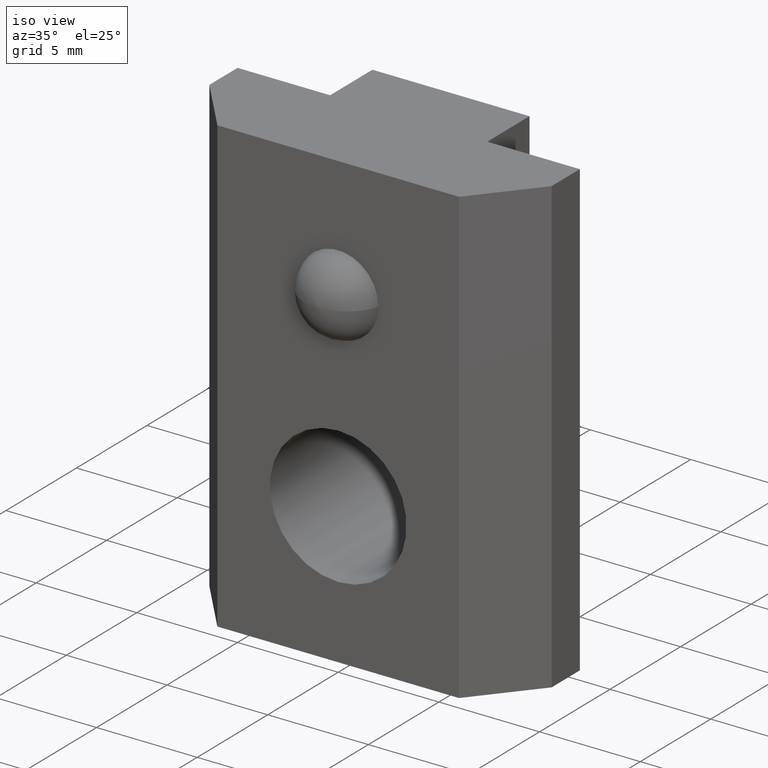
[diagram: clean part render]
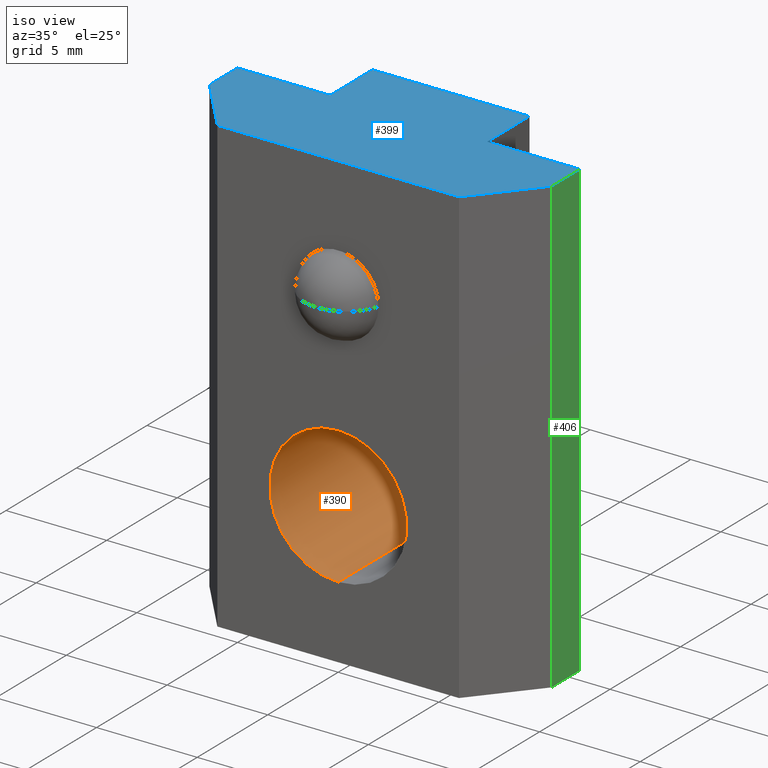
[diagram: same view with three faces highlighted in distinct colors, each labeled with its STEP entity id]
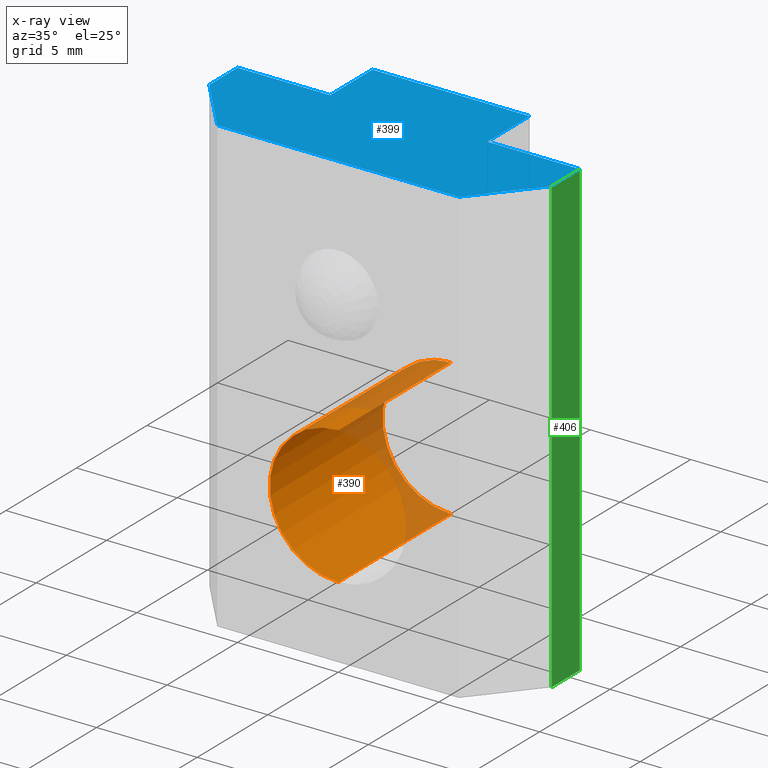
[diagram: x-ray of the same camera — body ghosted, the three highlighted faces saturated]
A machine part, iso view with three faces highlighted in distinct colors.
The next image is the same camera in x-ray (body ghosted, the three faces saturated) — at least one of them is partly hidden behind the body in this view.
Their STEP definitions:

[orange] entity #390 — the highlighted cylindrical surface (partial cylindrical patch) has radius 3.4 mm, axis along (-0, 1, -0).
#1 = CARTESIAN_POINT ( 'NONE',  ( -5.204170427930421300E-015, 7.999999999999998200, 7.000000000000000000 ) ) ;
#12 = DIRECTION ( 'NONE',  ( 0.0000000000000000000, 0.0000000000000000000, 1.000000000000000000 ) ) ;
#17 = DIRECTION ( 'NONE',  ( -0.0000000000000000000, 1.000000000000000000, -0.0000000000000000000 ) ) ;
#25 = CARTESIAN_POINT ( 'NONE',  ( -5.204170427930421300E-015, 7.999999999999998200, 10.40000000000000000 ) ) ;
#34 = CARTESIAN_POINT ( 'NONE',  ( -5.204170427930421300E-015, 7.999999999999998200, 7.000000000000000000 ) ) ;
#43 = DIRECTION ( 'NONE',  ( -0.0000000000000000000, 1.000000000000000000, -0.0000000000000000000 ) ) ;
#49 = DIRECTION ( 'NONE',  ( -0.0000000000000000000, 1.000000000000000000, -0.0000000000000000000 ) ) ;
#63 = CARTESIAN_POINT ( 'NONE',  ( -5.204170427930421300E-015, -6.938893903907228400E-015, 7.000000000000000000 ) ) ;
#67 = DIRECTION ( 'NONE',  ( 0.0000000000000000000, 0.0000000000000000000, 1.000000000000000000 ) ) ;
#100 = CARTESIAN_POINT ( 'NONE',  ( -4.787790516220321600E-015, 7.999999999999998200, 3.600000000000001400 ) ) ;
#103 = DIRECTION ( 'NONE',  ( 0.0000000000000000000, 0.0000000000000000000, 1.000000000000000000 ) ) ;
#108 = DIRECTION ( 'NONE',  ( -0.0000000000000000000, 1.000000000000000000, -0.0000000000000000000 ) ) ;
#131 = DIRECTION ( 'NONE',  ( -0.0000000000000000000, 1.000000000000000000, -0.0000000000000000000 ) ) ;
#145 = CIRCLE ( 'NONE', #285, 3.399999999999997700 ) ;
#158 = LINE ( 'NONE', #100, #159 ) ;
#159 = VECTOR ( 'NONE', #49, 1000.000000000000000 ) ;
#215 = ORIENTED_EDGE ( 'NONE', *, *, #235, .F. ) ;
#216 = ORIENTED_EDGE ( 'NONE', *, *, #281, .F. ) ;
#217 = ORIENTED_EDGE ( 'NONE', *, *, #243, .T. ) ;
#219 = ORIENTED_EDGE ( 'NONE', *, *, #306, .T. ) ;
#235 = EDGE_CURVE ( 'NONE', #504, #503, #382, .T. ) ;
#243 = EDGE_CURVE ( 'NONE', #491, #503, #385, .T. ) ;
#281 = EDGE_CURVE ( 'NONE', #499, #504, #145, .T. ) ;
#285 = AXIS2_PLACEMENT_3D ( 'NONE', #63, #131, #67 ) ;
#300 = AXIS2_PLACEMENT_3D ( 'NONE', #34, #17, #103 ) ;
#302 = AXIS2_PLACEMENT_3D ( 'NONE', #1, #108, #12 ) ;
#306 = EDGE_CURVE ( 'NONE', #499, #491, #158, .T. ) ;
#374 = EDGE_LOOP ( 'NONE', ( #216, #219, #217, #215 ) ) ;
#376 = VECTOR ( 'NONE', #43, 1000.000000000000000 ) ;
#382 = LINE ( 'NONE', #25, #376 ) ;
#385 = CIRCLE ( 'NONE', #300, 3.399999999999999500 ) ;
#390 = ADVANCED_FACE ( 'NONE', ( #532 ), #533, .F. ) ;
#447 = CARTESIAN_POINT ( 'NONE',  ( -5.204170427930421300E-015, -6.938893903907228400E-015, 10.39999999999999900 ) ) ;
#448 = CARTESIAN_POINT ( 'NONE',  ( -4.787790516220321600E-015, 7.999999999999998200, 3.600000000000001000 ) ) ;
#467 = CARTESIAN_POINT ( 'NONE',  ( -4.787790516220321600E-015, -6.938893903907228400E-015, 3.600000000000001900 ) ) ;
#469 = CARTESIAN_POINT ( 'NONE',  ( -5.204170427930421300E-015, 7.999999999999998200, 10.40000000000000000 ) ) ;
#491 = VERTEX_POINT ( 'NONE', #448 ) ;
#499 = VERTEX_POINT ( 'NONE', #467 ) ;
#503 = VERTEX_POINT ( 'NONE', #469 ) ;
#504 = VERTEX_POINT ( 'NONE', #447 ) ;
#532 = FACE_OUTER_BOUND ( 'NONE', #374, .T. ) ;
#533 = CYLINDRICAL_SURFACE ( 'NONE', #302, 3.399999999999999500 ) ;

[blue] entity #399 — the highlighted planar face has unit normal (0, 0, -1).
#7 = DIRECTION ( 'NONE',  ( 0.0000000000000000000, -1.000000000000000000, 0.0000000000000000000 ) ) ;
#9 = CARTESIAN_POINT ( 'NONE',  ( 3.899999999999997200, 4.999999999999999100, 22.50000000000000000 ) ) ;
#16 = DIRECTION ( 'NONE',  ( -1.000000000000000000, 0.0000000000000000000, 0.0000000000000000000 ) ) ;
#20 = DIRECTION ( 'NONE',  ( 0.0000000000000000000, 1.000000000000000000, 0.0000000000000000000 ) ) ;
#24 = DIRECTION ( 'NONE',  ( 0.6401843996644800400, -0.7682212795973756300, 0.0000000000000000000 ) ) ;
#32 = DIRECTION ( 'NONE',  ( 0.0000000000000000000, 0.0000000000000000000, -1.000000000000000000 ) ) ;
#44 = DIRECTION ( 'NONE',  ( 1.000000000000000000, -1.169020134121796800E-016, -0.0000000000000000000 ) ) ;
#56 = CARTESIAN_POINT ( 'NONE',  ( 5.999999999999998200, -2.872400319922979400E-015, 22.50000000000000000 ) ) ;
#69 = CARTESIAN_POINT ( 'NONE',  ( 5.204170427930421300E-015, -7.200000000000000200, 22.50000000000000000 ) ) ;
#72 = CARTESIAN_POINT ( 'NONE',  ( 8.499999999999998200, 3.000000000000000900, 22.50000000000000000 ) ) ;
#79 = DIRECTION ( 'NONE',  ( -1.000000000000000000, 0.0000000000000000000, -0.0000000000000000000 ) ) ;
#80 = CARTESIAN_POINT ( 'NONE',  ( -8.500000000000001800, 3.000000000000000900, 22.50000000000000000 ) ) ;
#83 = CARTESIAN_POINT ( 'NONE',  ( 8.499999999999998200, 5.000000000000000900, 22.50000000000000000 ) ) ;
#90 = CARTESIAN_POINT ( 'NONE',  ( -8.500000000000001800, 5.000000000000000000, 22.50000000000000000 ) ) ;
#92 = DIRECTION ( 'NONE',  ( -1.000000000000000000, -2.224004456380521400E-016, 0.0000000000000000000 ) ) ;
#94 = DIRECTION ( 'NONE',  ( -1.000000000000000000, -3.771137991253926600E-016, 0.0000000000000000000 ) ) ;
#95 = CARTESIAN_POINT ( 'NONE',  ( -3.900000000000005200, 7.999999999999998200, 22.50000000000000000 ) ) ;
#96 = DIRECTION ( 'NONE',  ( 8.673617379884041400E-016, -1.000000000000000000, 0.0000000000000000000 ) ) ;
#98 = DIRECTION ( 'NONE',  ( 0.6401843996644793800, 0.7682212795973761800, 0.0000000000000000000 ) ) ;
#110 = CARTESIAN_POINT ( 'NONE',  ( 5.999999999999998200, -2.872400319922979400E-015, 22.50000000000000000 ) ) ;
#113 = CARTESIAN_POINT ( 'NONE',  ( -3.900000000000002600, 5.000000000000000000, 22.50000000000000000 ) ) ;
#116 = CARTESIAN_POINT ( 'NONE',  ( 3.899999999999996400, 8.000000000000000000, 22.50000000000000000 ) ) ;
#125 = DIRECTION ( 'NONE',  ( -2.891205793294677800E-016, 1.000000000000000000, 0.0000000000000000000 ) ) ;
#133 = PLANE ( 'NONE',  #297 ) ;
#136 = VECTOR ( 'NONE', #92, 1000.000000000000000 ) ;
#156 = LINE ( 'NONE', #72, #157 ) ;
#157 = VECTOR ( 'NONE', #20, 1000.000000000000000 ) ;
#163 = LINE ( 'NONE', #90, #164 ) ;
#164 = VECTOR ( 'NONE', #7, 1000.000000000000000 ) ;
#165 = LINE ( 'NONE', #80, #166 ) ;
#166 = VECTOR ( 'NONE', #24, 1000.000000000000200 ) ;
#171 = LINE ( 'NONE', #9, #519 ) ;
#173 = LINE ( 'NONE', #110, #176 ) ;
#176 = VECTOR ( 'NONE', #44, 1000.000000000000000 ) ;
#179 = VECTOR ( 'NONE', #94, 1000.000000000000000 ) ;
#181 = LINE ( 'NONE', #83, #179 ) ;
#186 = ORIENTED_EDGE ( 'NONE', *, *, #309, .T. ) ;
#187 = ORIENTED_EDGE ( 'NONE', *, *, #310, .T. ) ;
#188 = ORIENTED_EDGE ( 'NONE', *, *, #318, .T. ) ;
#189 = ORIENTED_EDGE ( 'NONE', *, *, #265, .T. ) ;
#190 = ORIENTED_EDGE ( 'NONE', *, *, #274, .T. ) ;
#191 = ORIENTED_EDGE ( 'NONE', *, *, #313, .T. ) ;
#192 = ORIENTED_EDGE ( 'NONE', *, *, #305, .T. ) ;
#193 = ORIENTED_EDGE ( 'NONE', *, *, #266, .T. ) ;
#195 = ORIENTED_EDGE ( 'NONE', *, *, #316, .T. ) ;
#238 = EDGE_CURVE ( 'NONE', #496, #514, #173, .T. ) ;
#265 = EDGE_CURVE ( 'NONE', #516, #511, #387, .T. ) ;
#266 = EDGE_CURVE ( 'NONE', #506, #505, #181, .T. ) ;
#274 = EDGE_CURVE ( 'NONE', #490, #516, #477, .T. ) ;
#297 = AXIS2_PLACEMENT_3D ( 'NONE', #69, #32, #79 ) ;
#305 = EDGE_CURVE ( 'NONE', #492, #506, #156, .T. ) ;
#309 = EDGE_CURVE ( 'NONE', #508, #515, #163, .T. ) ;
#310 = EDGE_CURVE ( 'NONE', #515, #496, #165, .T. ) ;
#313 = EDGE_CURVE ( 'NONE', #505, #490, #171, .T. ) ;
#316 = EDGE_CURVE ( 'NONE', #514, #492, #522, .T. ) ;
#318 = EDGE_CURVE ( 'NONE', #511, #508, #527, .T. ) ;
#347 = ORIENTED_EDGE ( 'NONE', *, *, #238, .T. ) ;
#357 = EDGE_LOOP ( 'NONE', ( #195, #192, #193, #191, #190, #189, #188, #186, #187, #347 ) ) ;
#386 = VECTOR ( 'NONE', #96, 1000.000000000000000 ) ;
#387 = LINE ( 'NONE', #95, #386 ) ;
#399 = ADVANCED_FACE ( 'NONE', ( #542 ), #133, .F. ) ;
#449 = CARTESIAN_POINT ( 'NONE',  ( -5.999999999999998200, -1.469576158976823800E-015, 22.50000000000000000 ) ) ;
#450 = CARTESIAN_POINT ( 'NONE',  ( -3.900000000000002600, 5.000000000000000000, 22.50000000000000000 ) ) ;
#451 = CARTESIAN_POINT ( 'NONE',  ( -8.500000000000001800, 5.000000000000000000, 22.50000000000000000 ) ) ;
#452 = CARTESIAN_POINT ( 'NONE',  ( 8.499999999999998200, 5.000000000000000900, 22.50000000000000000 ) ) ;
#456 = CARTESIAN_POINT ( 'NONE',  ( -8.500000000000001800, 3.000000000000000900, 22.50000000000000000 ) ) ;
#461 = CARTESIAN_POINT ( 'NONE',  ( 3.899999999999997200, 4.999999999999999100, 22.50000000000000000 ) ) ;
#470 = CARTESIAN_POINT ( 'NONE',  ( -3.900000000000005200, 7.999999999999998200, 22.50000000000000000 ) ) ;
#471 = CARTESIAN_POINT ( 'NONE',  ( 8.499999999999998200, 3.000000000000000900, 22.50000000000000000 ) ) ;
#472 = CARTESIAN_POINT ( 'NONE',  ( 5.999999999999998200, -2.872400319922979400E-015, 22.50000000000000000 ) ) ;
#473 = CARTESIAN_POINT ( 'NONE',  ( 3.899999999999996400, 8.000000000000000000, 22.50000000000000000 ) ) ;
#477 = LINE ( 'NONE', #116, #136 ) ;
#490 = VERTEX_POINT ( 'NONE', #473 ) ;
#492 = VERTEX_POINT ( 'NONE', #471 ) ;
#496 = VERTEX_POINT ( 'NONE', #449 ) ;
#505 = VERTEX_POINT ( 'NONE', #461 ) ;
#506 = VERTEX_POINT ( 'NONE', #452 ) ;
#508 = VERTEX_POINT ( 'NONE', #451 ) ;
#511 = VERTEX_POINT ( 'NONE', #450 ) ;
#514 = VERTEX_POINT ( 'NONE', #472 ) ;
#515 = VERTEX_POINT ( 'NONE', #456 ) ;
#516 = VERTEX_POINT ( 'NONE', #470 ) ;
#519 = VECTOR ( 'NONE', #125, 1000.000000000000000 ) ;
#522 = LINE ( 'NONE', #56, #524 ) ;
#524 = VECTOR ( 'NONE', #98, 1000.000000000000300 ) ;
#527 = LINE ( 'NONE', #113, #528 ) ;
#528 = VECTOR ( 'NONE', #16, 1000.000000000000000 ) ;
#542 = FACE_OUTER_BOUND ( 'NONE', #357, .T. ) ;

[green] entity #406 — the highlighted planar face has unit normal (-1, 0, 0).
#8 = DIRECTION ( 'NONE',  ( -0.0000000000000000000, -0.0000000000000000000, -1.000000000000000000 ) ) ;
#20 = DIRECTION ( 'NONE',  ( 0.0000000000000000000, 1.000000000000000000, 0.0000000000000000000 ) ) ;
#45 = CARTESIAN_POINT ( 'NONE',  ( 8.499999999999998200, 3.000000000000000900, 0.0000000000000000000 ) ) ;
#72 = CARTESIAN_POINT ( 'NONE',  ( 8.499999999999998200, 3.000000000000000900, 22.50000000000000000 ) ) ;
#78 = CARTESIAN_POINT ( 'NONE',  ( 8.499999999999998200, 3.000000000000000900, 22.50000000000000000 ) ) ;
#85 = DIRECTION ( 'NONE',  ( -0.0000000000000000000, -0.0000000000000000000, -1.000000000000000000 ) ) ;
#105 = DIRECTION ( 'NONE',  ( 0.0000000000000000000, 1.000000000000000000, 0.0000000000000000000 ) ) ;
#127 = CARTESIAN_POINT ( 'NONE',  ( 8.499999999999998200, 5.000000000000000900, 22.50000000000000000 ) ) ;
#137 = LINE ( 'NONE', #78, #139 ) ;
#139 = VECTOR ( 'NONE', #8, 1000.000000000000000 ) ;
#156 = LINE ( 'NONE', #72, #157 ) ;
#157 = VECTOR ( 'NONE', #20, 1000.000000000000000 ) ;
#169 = LINE ( 'NONE', #127, #170 ) ;
#170 = VECTOR ( 'NONE', #85, 1000.000000000000000 ) ;
#213 = ORIENTED_EDGE ( 'NONE', *, *, #305, .F. ) ;
#221 = ORIENTED_EDGE ( 'NONE', *, *, #236, .T. ) ;
#223 = ORIENTED_EDGE ( 'NONE', *, *, #312, .F. ) ;
#236 = EDGE_CURVE ( 'NONE', #497, #510, #379, .T. ) ;
#262 = AXIS2_PLACEMENT_3D ( 'NONE', #431, #430, #440 ) ;
#276 = EDGE_CURVE ( 'NONE', #492, #497, #137, .T. ) ;
#305 = EDGE_CURVE ( 'NONE', #492, #506, #156, .T. ) ;
#312 = EDGE_CURVE ( 'NONE', #506, #510, #169, .T. ) ;
#329 = ORIENTED_EDGE ( 'NONE', *, *, #276, .T. ) ;
#364 = EDGE_LOOP ( 'NONE', ( #221, #223, #213, #329 ) ) ;
#378 = VECTOR ( 'NONE', #105, 1000.000000000000000 ) ;
#379 = LINE ( 'NONE', #45, #378 ) ;
#406 = ADVANCED_FACE ( 'NONE', ( #552 ), #432, .F. ) ;
#430 = DIRECTION ( 'NONE',  ( -1.000000000000000000, 0.0000000000000000000, 0.0000000000000000000 ) ) ;
#431 = CARTESIAN_POINT ( 'NONE',  ( 8.499999999999998200, 3.000000000000000900, 22.50000000000000000 ) ) ;
#432 = PLANE ( 'NONE',  #262 ) ;
#440 = DIRECTION ( 'NONE',  ( 0.0000000000000000000, 0.0000000000000000000, 1.000000000000000000 ) ) ;
#452 = CARTESIAN_POINT ( 'NONE',  ( 8.499999999999998200, 5.000000000000000900, 22.50000000000000000 ) ) ;
#454 = CARTESIAN_POINT ( 'NONE',  ( 8.499999999999998200, 3.000000000000000900, 0.0000000000000000000 ) ) ;
#458 = CARTESIAN_POINT ( 'NONE',  ( 8.499999999999998200, 5.000000000000000900, 0.0000000000000000000 ) ) ;
#471 = CARTESIAN_POINT ( 'NONE',  ( 8.499999999999998200, 3.000000000000000900, 22.50000000000000000 ) ) ;
#492 = VERTEX_POINT ( 'NONE', #471 ) ;
#497 = VERTEX_POINT ( 'NONE', #454 ) ;
#506 = VERTEX_POINT ( 'NONE', #452 ) ;
#510 = VERTEX_POINT ( 'NONE', #458 ) ;
#552 = FACE_OUTER_BOUND ( 'NONE', #364, .T. ) ;